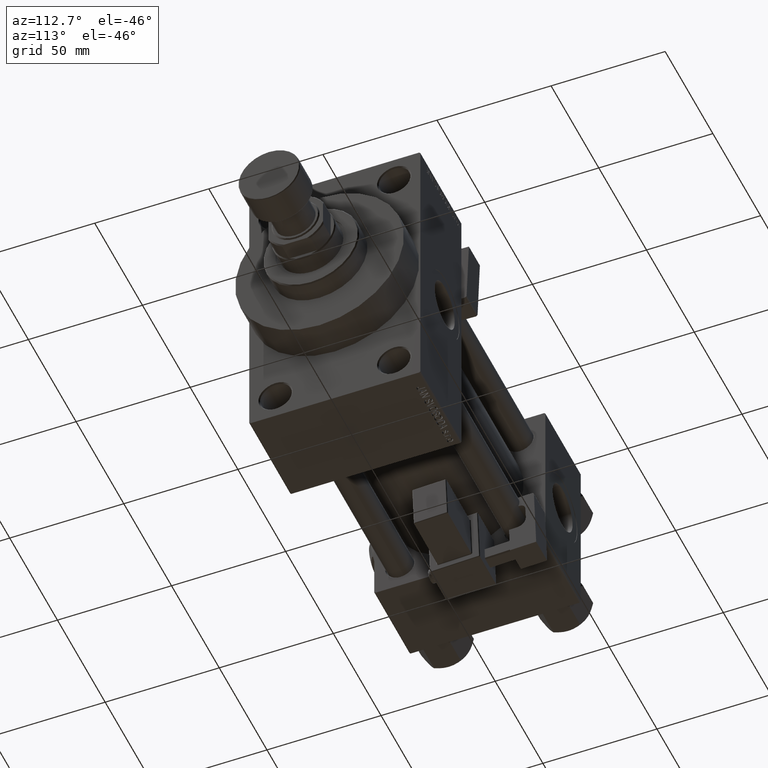
[diagram: clean part render]
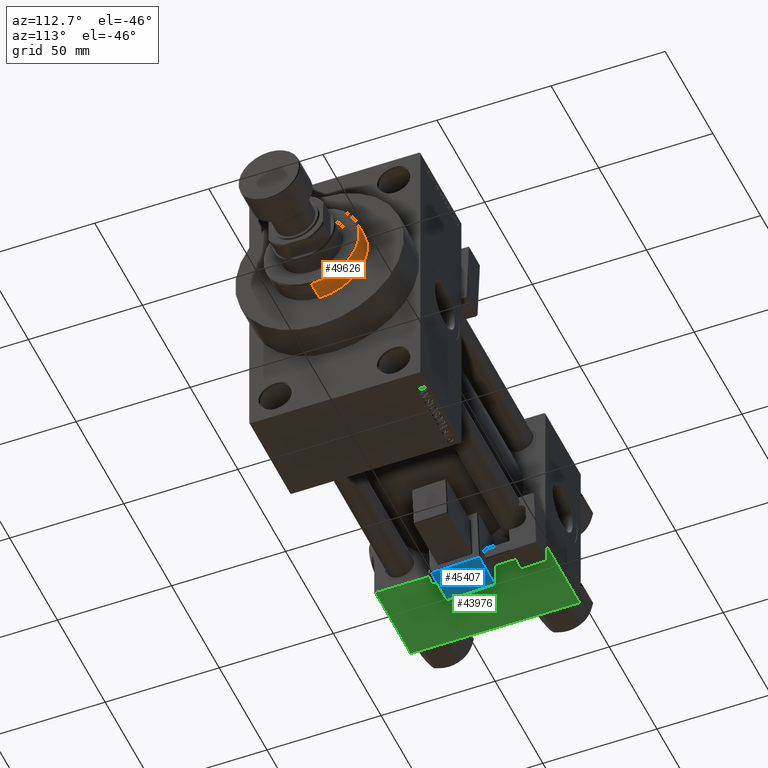
[diagram: same view with three faces highlighted in distinct colors, each labeled with its STEP entity id]
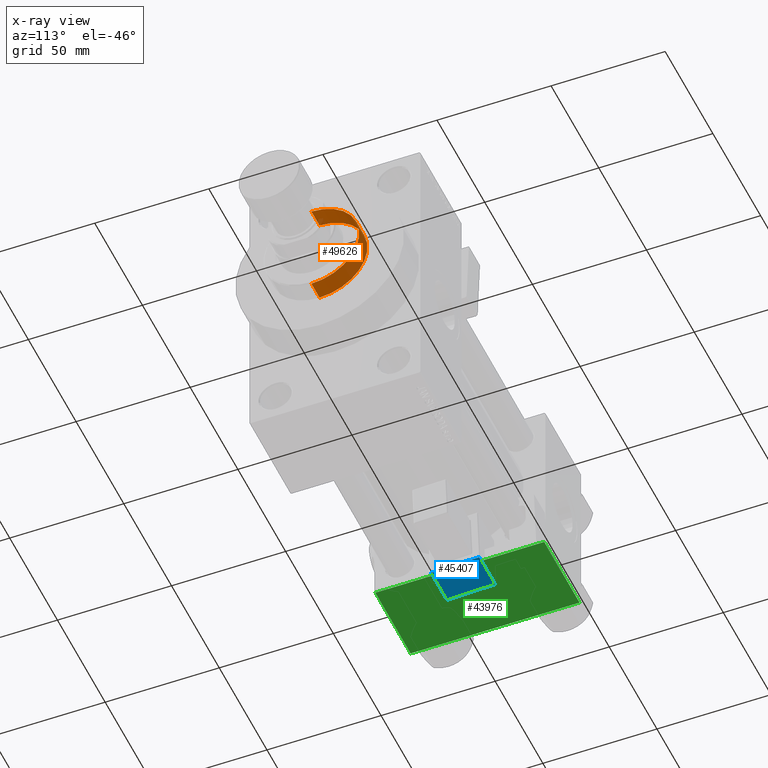
[diagram: x-ray of the same camera — body ghosted, the three highlighted faces saturated]
A machine part, auxiliary view with three faces highlighted in distinct colors.
The next image is the same camera in x-ray (body ghosted, the three faces saturated) — at least one of them is partly hidden behind the body in this view.
Their STEP definitions:

[orange] entity #49626 — the highlighted cylindrical surface (partial cylindrical patch) has radius 21 mm, axis along (-1, 0, 0).
#18 = VERTEX_POINT ( 'NONE', #49320 ) ;
#312 = DIRECTION ( 'NONE',  ( 0.000000000000000000, 0.000000000000000000, -1.000000000000000000 ) ) ;
#653 = DIRECTION ( 'NONE',  ( 1.000000000000000000, 0.000000000000000000, 0.000000000000000000 ) ) ;
#1116 = EDGE_CURVE ( 'NONE', #46696, #18365, #21427, .T. ) ;
#3387 = AXIS2_PLACEMENT_3D ( 'NONE', #17826, #312, #21768 ) ;
#6233 = FACE_OUTER_BOUND ( 'NONE', #41311, .T. ) ;
#8696 = ORIENTED_EDGE ( 'NONE', *, *, #44587, .T. ) ;
#11728 = CIRCLE ( 'NONE', #32728, 21.00000000000000000 ) ;
#13400 = ORIENTED_EDGE ( 'NONE', *, *, #13444, .T. ) ;
#13444 = EDGE_CURVE ( 'NONE', #18365, #18, #11728, .T. ) ;
#17826 = CARTESIAN_POINT ( 'NONE',  ( 0.000000000000000000, 0.000000000000000000, 51.75999999999999801 ) ) ;
#18365 = VERTEX_POINT ( 'NONE', #23677 ) ;
#19982 = ORIENTED_EDGE ( 'NONE', *, *, #29875, .F. ) ;
#21427 = LINE ( 'NONE', #25121, #30693 ) ;
#21768 = DIRECTION ( 'NONE',  ( 1.000000000000000000, 0.000000000000000000, 0.000000000000000000 ) ) ;
#22005 = DIRECTION ( 'NONE',  ( -1.000000000000000000, 0.000000000000000000, 0.000000000000000000 ) ) ;
#23151 = CARTESIAN_POINT ( 'NONE',  ( 21.00000000000000000, 2.571758278209441661E-15, 51.75999999999999801 ) ) ;
#23677 = CARTESIAN_POINT ( 'NONE',  ( -21.00000000000000000, 0.000000000000000000, 43.25999999999999801 ) ) ;
#24304 = DIRECTION ( 'NONE',  ( 0.000000000000000000, 0.000000000000000000, 1.000000000000000000 ) ) ;
#25121 = CARTESIAN_POINT ( 'NONE',  ( -21.00000000000000000, 0.000000000000000000, 52.25999999999999801 ) ) ;
#26058 = CIRCLE ( 'NONE', #3387, 21.00000000000000000 ) ;
#26470 = CYLINDRICAL_SURFACE ( 'NONE', #42058, 21.00000000000000000 ) ;
#27349 = CARTESIAN_POINT ( 'NONE',  ( 21.00000000000000000, 2.571758278209441661E-15, 52.25999999999999801 ) ) ;
#29875 = EDGE_CURVE ( 'NONE', #48082, #18, #31541, .T. ) ;
#30693 = VECTOR ( 'NONE', #49531, 1000.000000000000000 ) ;
#31541 = LINE ( 'NONE', #27349, #34039 ) ;
#32728 = AXIS2_PLACEMENT_3D ( 'NONE', #40564, #24304, #653 ) ;
#34039 = VECTOR ( 'NONE', #37924, 1000.000000000000000 ) ;
#35176 = ORIENTED_EDGE ( 'NONE', *, *, #1116, .T. ) ;
#37924 = DIRECTION ( 'NONE',  ( -0.000000000000000000, -0.000000000000000000, -1.000000000000000000 ) ) ;
#40564 = CARTESIAN_POINT ( 'NONE',  ( 0.000000000000000000, 0.000000000000000000, 43.25999999999999801 ) ) ;
#41311 = EDGE_LOOP ( 'NONE', ( #19982, #8696, #35176, #13400 ) ) ;
#42058 = AXIS2_PLACEMENT_3D ( 'NONE', #42464, #50627, #22005 ) ;
#42464 = CARTESIAN_POINT ( 'NONE',  ( 0.000000000000000000, 0.000000000000000000, 52.25999999999999801 ) ) ;
#44587 = EDGE_CURVE ( 'NONE', #48082, #46696, #26058, .T. ) ;
#46696 = VERTEX_POINT ( 'NONE', #51453 ) ;
#48082 = VERTEX_POINT ( 'NONE', #23151 ) ;
#49320 = CARTESIAN_POINT ( 'NONE',  ( 21.00000000000000000, 2.571758278209441661E-15, 43.25999999999999801 ) ) ;
#49531 = DIRECTION ( 'NONE',  ( -0.000000000000000000, -0.000000000000000000, -1.000000000000000000 ) ) ;
#49626 = ADVANCED_FACE ( 'NONE', ( #6233 ), #26470, .T. ) ;
#50627 = DIRECTION ( 'NONE',  ( -0.000000000000000000, -0.000000000000000000, -1.000000000000000000 ) ) ;
#51453 = CARTESIAN_POINT ( 'NONE',  ( -21.00000000000000000, 0.000000000000000000, 51.75999999999999801 ) ) ;

[blue] entity #45407 — the highlighted planar face has unit normal (0, -0.0353, 0.9994).
#17 = VECTOR ( 'NONE', #48171, 1000.000000000000000 ) ;
#847 = VECTOR ( 'NONE', #15681, 1000.000000000000000 ) ;
#1363 = DIRECTION ( 'NONE',  ( -0.000000000000000000, -1.000000000000000000, -0.000000000000000000 ) ) ;
#7025 = EDGE_CURVE ( 'NONE', #18135, #26777, #38542, .T. ) ;
#10252 = CARTESIAN_POINT ( 'NONE',  ( 8.250000000000003553, -18.25000000000000355, -1.000000000000000222 ) ) ;
#11830 = AXIS2_PLACEMENT_3D ( 'NONE', #38368, #13715, #50208 ) ;
#12931 = FACE_OUTER_BOUND ( 'NONE', #49264, .T. ) ;
#13715 = DIRECTION ( 'NONE',  ( 0.000000000000000000, 0.000000000000000000, 1.000000000000000000 ) ) ;
#13809 = EDGE_CURVE ( 'NONE', #24456, #23078, #36567, .T. ) ;
#15681 = DIRECTION ( 'NONE',  ( 1.000000000000000000, -0.000000000000000000, 0.000000000000000000 ) ) ;
#17107 = CARTESIAN_POINT ( 'NONE',  ( 8.750000000000003553, -39.25000000000000000, -1.000000000000000222 ) ) ;
#18135 = VERTEX_POINT ( 'NONE', #34466 ) ;
#19226 = ORIENTED_EDGE ( 'NONE', *, *, #40297, .T. ) ;
#19626 = LINE ( 'NONE', #47464, #847 ) ;
#23078 = VERTEX_POINT ( 'NONE', #37941 ) ;
#24456 = VERTEX_POINT ( 'NONE', #10252 ) ;
#25883 = VECTOR ( 'NONE', #49855, 1000.000000000000000 ) ;
#26777 = VERTEX_POINT ( 'NONE', #32694 ) ;
#27191 = ORIENTED_EDGE ( 'NONE', *, *, #13809, .T. ) ;
#27699 = ORIENTED_EDGE ( 'NONE', *, *, #43615, .T. ) ;
#29362 = VECTOR ( 'NONE', #1363, 1000.000000000000000 ) ;
#32694 = CARTESIAN_POINT ( 'NONE',  ( -8.250000000000003553, -18.25000000000000355, -1.000000000000000222 ) ) ;
#33918 = PLANE ( 'NONE',  #11830 ) ;
#34466 = CARTESIAN_POINT ( 'NONE',  ( -8.250000000000003553, -39.25000000000000000, -1.000000000000000222 ) ) ;
#36567 = LINE ( 'NONE', #41017, #29362 ) ;
#37941 = CARTESIAN_POINT ( 'NONE',  ( 8.250000000000003553, -39.25000000000000000, -1.000000000000000222 ) ) ;
#38368 = CARTESIAN_POINT ( 'NONE',  ( 8.750000000000003553, -39.75000000000000000, -1.000000000000000222 ) ) ;
#38542 = LINE ( 'NONE', #38797, #25883 ) ;
#38797 = CARTESIAN_POINT ( 'NONE',  ( -8.250000000000003553, -39.75000000000000000, -1.000000000000000222 ) ) ;
#40297 = EDGE_CURVE ( 'NONE', #23078, #18135, #49139, .T. ) ;
#41017 = CARTESIAN_POINT ( 'NONE',  ( 8.250000000000003553, -39.75000000000000000, -1.000000000000000222 ) ) ;
#43615 = EDGE_CURVE ( 'NONE', #26777, #24456, #19626, .T. ) ;
#45407 = ADVANCED_FACE ( 'NONE', ( #12931 ), #33918, .F. ) ;
#47464 = CARTESIAN_POINT ( 'NONE',  ( 8.750000000000003553, -18.25000000000000355, -1.000000000000000222 ) ) ;
#48171 = DIRECTION ( 'NONE',  ( -1.000000000000000000, -0.000000000000000000, 0.000000000000000000 ) ) ;
#49139 = LINE ( 'NONE', #17107, #17 ) ;
#49264 = EDGE_LOOP ( 'NONE', ( #27699, #27191, #19226, #51732 ) ) ;
#49855 = DIRECTION ( 'NONE',  ( -0.000000000000000000, 1.000000000000000000, 0.000000000000000000 ) ) ;
#50208 = DIRECTION ( 'NONE',  ( 1.000000000000000000, 0.000000000000000000, -0.000000000000000000 ) ) ;
#51732 = ORIENTED_EDGE ( 'NONE', *, *, #7025, .T. ) ;

[green] entity #43976 — the highlighted planar face has unit normal (0, 0, -1).
#182 = VERTEX_POINT ( 'NONE', #44003 ) ;
#1838 = LINE ( 'NONE', #33881, #47642 ) ;
#2246 = VECTOR ( 'NONE', #42219, 1000.000000000000000 ) ;
#9980 = VERTEX_POINT ( 'NONE', #41483 ) ;
#10006 = EDGE_CURVE ( 'NONE', #9980, #16757, #1838, .T. ) ;
#10198 = LINE ( 'NONE', #42478, #2246 ) ;
#11942 = PLANE ( 'NONE',  #14325 ) ;
#12127 = CARTESIAN_POINT ( 'NONE',  ( 0.000000000000000000, -37.00000000000002132, -37.50000000000000711 ) ) ;
#13628 = LINE ( 'NONE', #12127, #51094 ) ;
#14325 = AXIS2_PLACEMENT_3D ( 'NONE', #36353, #27456, #40018 ) ;
#16757 = VERTEX_POINT ( 'NONE', #43732 ) ;
#23434 = DIRECTION ( 'NONE',  ( 1.000000000000000000, 0.000000000000000000, 0.000000000000000000 ) ) ;
#24184 = ORIENTED_EDGE ( 'NONE', *, *, #37952, .T. ) ;
#27456 = DIRECTION ( 'NONE',  ( 0.000000000000000000, 9.251858538542972814E-17, -1.000000000000000000 ) ) ;
#28678 = VECTOR ( 'NONE', #23434, 1000.000000000000000 ) ;
#29947 = ORIENTED_EDGE ( 'NONE', *, *, #32454, .T. ) ;
#30803 = CARTESIAN_POINT ( 'NONE',  ( 37.00000000000000000, 36.99999999999997868, -37.50000000000000000 ) ) ;
#32454 = EDGE_CURVE ( 'NONE', #50506, #182, #10198, .T. ) ;
#33881 = CARTESIAN_POINT ( 'NONE',  ( 0.000000000000000000, 37.49999999999999289, -37.50000000000000000 ) ) ;
#34086 = CARTESIAN_POINT ( 'NONE',  ( 37.00000000000000000, 36.99999999999997868, -37.50000000000000000 ) ) ;
#36096 = FACE_OUTER_BOUND ( 'NONE', #43768, .T. ) ;
#36353 = CARTESIAN_POINT ( 'NONE',  ( 37.00000000000000000, 37.49999999999999289, -37.50000000000000000 ) ) ;
#36491 = ORIENTED_EDGE ( 'NONE', *, *, #10006, .F. ) ;
#37037 = DIRECTION ( 'NONE',  ( 0.000000000000000000, -1.000000000000000000, -9.251858538542972814E-17 ) ) ;
#37952 = EDGE_CURVE ( 'NONE', #182, #16757, #13628, .T. ) ;
#40018 = DIRECTION ( 'NONE',  ( 0.000000000000000000, 1.000000000000000000, 9.251858538542972814E-17 ) ) ;
#41483 = CARTESIAN_POINT ( 'NONE',  ( 0.000000000000000000, 36.99999999999997868, -37.50000000000000000 ) ) ;
#42219 = DIRECTION ( 'NONE',  ( 0.000000000000000000, -1.000000000000000000, -9.251858538542972814E-17 ) ) ;
#42478 = CARTESIAN_POINT ( 'NONE',  ( 37.00000000000000000, 37.49999999999999289, -37.50000000000000000 ) ) ;
#43113 = LINE ( 'NONE', #30803, #28678 ) ;
#43732 = CARTESIAN_POINT ( 'NONE',  ( 0.000000000000000000, -37.00000000000002132, -37.50000000000000711 ) ) ;
#43768 = EDGE_LOOP ( 'NONE', ( #36491, #47206, #29947, #24184 ) ) ;
#43976 = ADVANCED_FACE ( 'NONE', ( #36096 ), #11942, .T. ) ;
#44003 = CARTESIAN_POINT ( 'NONE',  ( 37.00000000000000000, -37.00000000000002132, -37.50000000000000711 ) ) ;
#47206 = ORIENTED_EDGE ( 'NONE', *, *, #47327, .T. ) ;
#47327 = EDGE_CURVE ( 'NONE', #9980, #50506, #43113, .T. ) ;
#47642 = VECTOR ( 'NONE', #37037, 1000.000000000000000 ) ;
#49331 = DIRECTION ( 'NONE',  ( -1.000000000000000000, 0.000000000000000000, 0.000000000000000000 ) ) ;
#50506 = VERTEX_POINT ( 'NONE', #34086 ) ;
#51094 = VECTOR ( 'NONE', #49331, 1000.000000000000000 ) ;